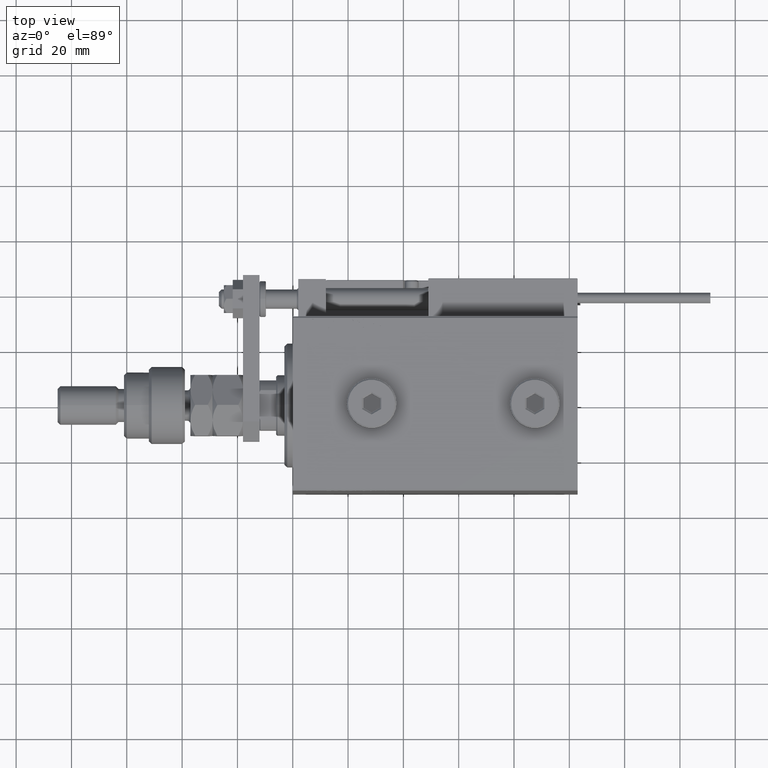
[diagram: clean part render]
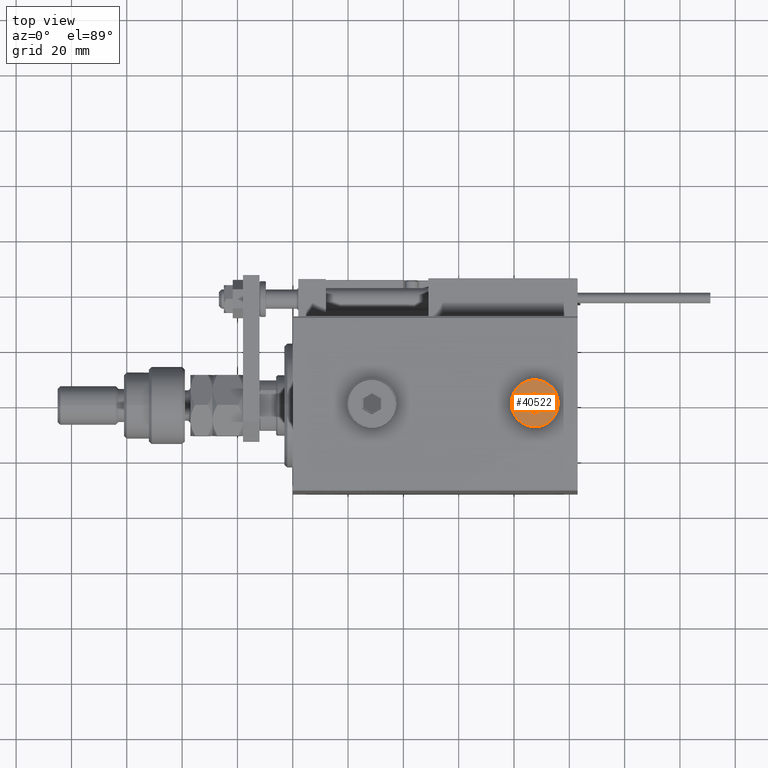
[diagram: same view with one face highlighted and labeled with its STEP entity id]
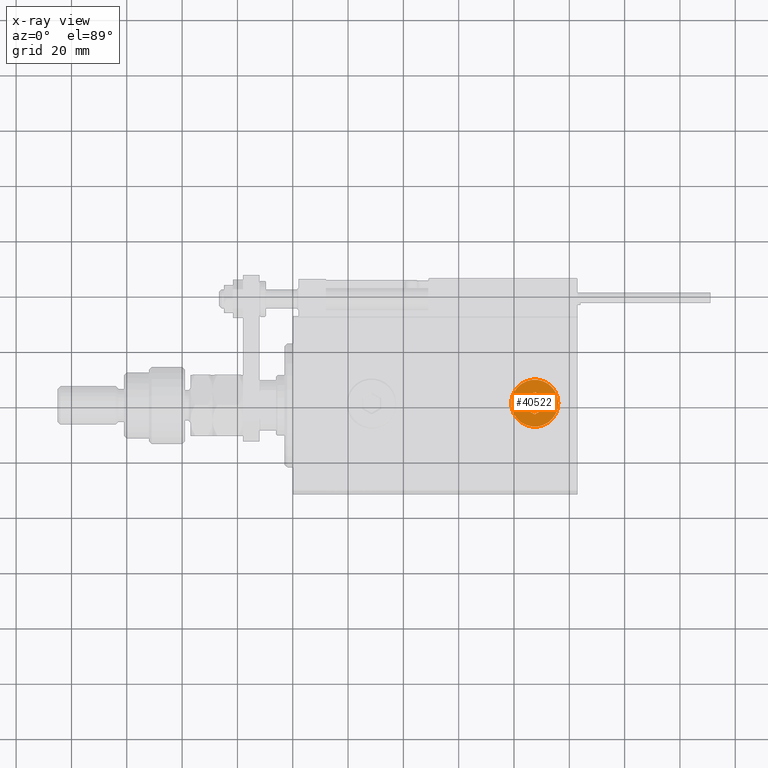
[diagram: x-ray of the same camera — body ghosted, the highlighted face saturated]
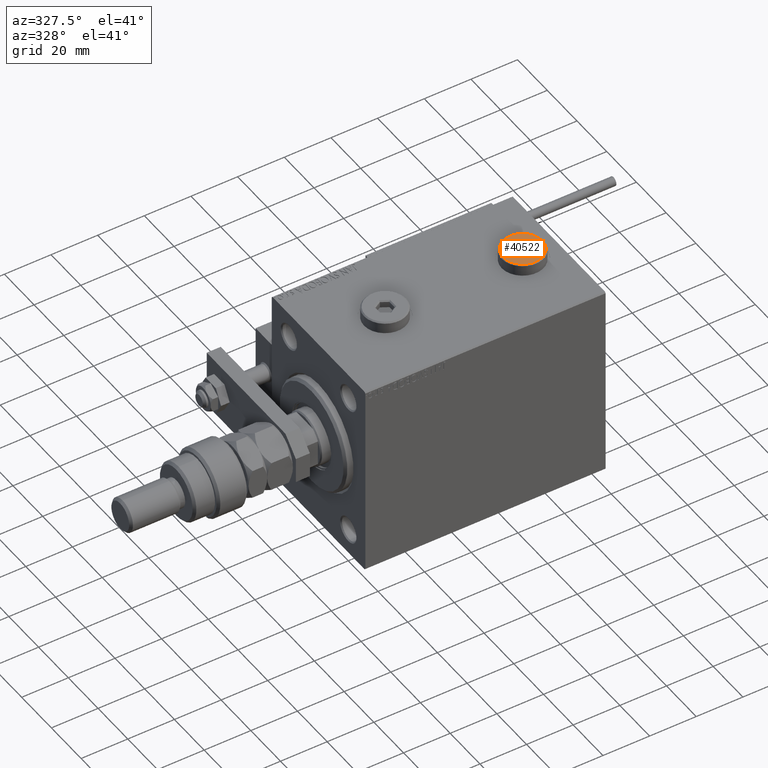
[diagram: same view with one face highlighted and labeled with its STEP entity id]
A machine part, top view. The second image highlights one B-rep face of the part: STEP entity #40522.
The next image is the same camera in x-ray: the body ghosted, the highlighted face saturated — about 0% of this face is hidden behind the body in this view.
A second angle (auxiliary view) of the same face is appended — the face is thin or edge-on in the first view.
In plain terms, the highlighted planar face has unit normal (0, 0, 1).
Its self-contained STEP definition (entity closure, byte-faithful):
#294 = EDGE_CURVE ( 'NONE', #5337, #26127, #39803, .T. ) ;
#570 = ORIENTED_EDGE ( 'NONE', *, *, #7178, .T. ) ;
#1212 = DIRECTION ( 'NONE',  ( 1.000000000000000000, 0.000000000000000000, 0.000000000000000000 ) ) ;
#1324 = VECTOR ( 'NONE', #45115, 1000.000000000000000 ) ;
#2030 = ORIENTED_EDGE ( 'NONE', *, *, #14037, .T. ) ;
#2640 = DIRECTION ( 'NONE',  ( -0.8660254037844387076, -0.4999999999999998890, 0.000000000000000000 ) ) ;
#2750 = CARTESIAN_POINT ( 'NONE',  ( 3.500000000000006661, 2.020725942163694722, 5.000000000000000000 ) ) ;
#3882 = DIRECTION ( 'NONE',  ( 0.000000000000000000, 1.000000000000000000, 0.000000000000000000 ) ) ;
#5004 = CARTESIAN_POINT ( 'NONE',  ( -3.500000000000006661, 2.020725942163692945, 5.000000000000000000 ) ) ;
#5337 = VERTEX_POINT ( 'NONE', #24980 ) ;
#5685 = LINE ( 'NONE', #33035, #51308 ) ;
#5704 = VECTOR ( 'NONE', #39187, 1000.000000000000000 ) ;
#6153 = VERTEX_POINT ( 'NONE', #2750 ) ;
#7008 = DIRECTION ( 'NONE',  ( 0.000000000000000000, 0.000000000000000000, 1.000000000000000000 ) ) ;
#7178 = EDGE_CURVE ( 'NONE', #17049, #48387, #47528, .T. ) ;
#8092 = EDGE_LOOP ( 'NONE', ( #51023, #26007 ) ) ;
#10954 = CARTESIAN_POINT ( 'NONE',  ( -0.2500000000000027756, 3.897114317029978459, 5.000000000000000000 ) ) ;
#12762 = CIRCLE ( 'NONE', #20042, 8.500000000000010658 ) ;
#14037 = EDGE_CURVE ( 'NONE', #25117, #17049, #32326, .T. ) ;
#16393 = ORIENTED_EDGE ( 'NONE', *, *, #44211, .T. ) ;
#16759 = LINE ( 'NONE', #42232, #43916 ) ;
#17049 = VERTEX_POINT ( 'NONE', #51992 ) ;
#19320 = FACE_BOUND ( 'NONE', #22100, .T. ) ;
#19696 = VERTEX_POINT ( 'NONE', #5004 ) ;
#20042 = AXIS2_PLACEMENT_3D ( 'NONE', #26361, #26077, #43165 ) ;
#20143 = CARTESIAN_POINT ( 'NONE',  ( 0.000000000000000000, 0.000000000000000000, 5.000000000000000000 ) ) ;
#21483 = DIRECTION ( 'NONE',  ( -0.8660254037844385966, 0.4999999999999999445, 0.000000000000000000 ) ) ;
#22100 = EDGE_LOOP ( 'NONE', ( #32527, #23138, #43793, #16393, #2030, #570 ) ) ;
#22409 = FACE_OUTER_BOUND ( 'NONE', #8092, .T. ) ;
#22649 = AXIS2_PLACEMENT_3D ( 'NONE', #20143, #7008, #41974 ) ;
#23138 = ORIENTED_EDGE ( 'NONE', *, *, #31794, .T. ) ;
#24980 = CARTESIAN_POINT ( 'NONE',  ( 8.500000000000010658, 1.071565949253934716E-15, 5.000000000000000000 ) ) ;
#25117 = VERTEX_POINT ( 'NONE', #47701 ) ;
#25302 = EDGE_CURVE ( 'NONE', #50757, #6153, #5685, .T. ) ;
#26007 = ORIENTED_EDGE ( 'NONE', *, *, #294, .T. ) ;
#26077 = DIRECTION ( 'NONE',  ( 0.000000000000000000, 0.000000000000000000, 1.000000000000000000 ) ) ;
#26127 = VERTEX_POINT ( 'NONE', #54121 ) ;
#26167 = EDGE_CURVE ( 'NONE', #26127, #5337, #12762, .T. ) ;
#26361 = CARTESIAN_POINT ( 'NONE',  ( 0.000000000000000000, 0.000000000000000000, 5.000000000000000000 ) ) ;
#27236 = CARTESIAN_POINT ( 'NONE',  ( 0.000000000000000000, 0.000000000000000000, 5.000000000000000000 ) ) ;
#27562 = CARTESIAN_POINT ( 'NONE',  ( 0.2500000000000027756, -3.897114317029979347, 5.000000000000000000 ) ) ;
#31794 = EDGE_CURVE ( 'NONE', #19696, #50757, #49866, .T. ) ;
#32326 = LINE ( 'NONE', #27562, #38314 ) ;
#32527 = ORIENTED_EDGE ( 'NONE', *, *, #35194, .T. ) ;
#33035 = CARTESIAN_POINT ( 'NONE',  ( 3.250000000000003109, 2.165063509461103042, 5.000000000000000000 ) ) ;
#34579 = CARTESIAN_POINT ( 'NONE',  ( -3.500000000000006661, -2.020725942163694278, 5.000000000000000000 ) ) ;
#34730 = LINE ( 'NONE', #38920, #5704 ) ;
#35194 = EDGE_CURVE ( 'NONE', #48387, #19696, #16759, .T. ) ;
#35365 = DIRECTION ( 'NONE',  ( 0.8660254037844387076, -0.4999999999999998890, 0.000000000000000000 ) ) ;
#38314 = VECTOR ( 'NONE', #2640, 1000.000000000000000 ) ;
#38920 = CARTESIAN_POINT ( 'NONE',  ( 3.500000000000006661, -1.732050807568878303, 5.000000000000000000 ) ) ;
#39187 = DIRECTION ( 'NONE',  ( 0.000000000000000000, -1.000000000000000000, 0.000000000000000000 ) ) ;
#39491 = PLANE ( 'NONE',  #22649 ) ;
#39803 = CIRCLE ( 'NONE', #49655, 8.500000000000010658 ) ;
#40522 = ADVANCED_FACE ( 'NONE', ( #19320, #22409 ), #39491, .T. ) ;
#41974 = DIRECTION ( 'NONE',  ( 1.000000000000000000, 0.000000000000000000, -0.000000000000000000 ) ) ;
#42232 = CARTESIAN_POINT ( 'NONE',  ( -3.500000000000006661, 1.732050807568878081, 5.000000000000000000 ) ) ;
#43165 = DIRECTION ( 'NONE',  ( 1.000000000000000000, 0.000000000000000000, 0.000000000000000000 ) ) ;
#43793 = ORIENTED_EDGE ( 'NONE', *, *, #25302, .T. ) ;
#43916 = VECTOR ( 'NONE', #3882, 1000.000000000000000 ) ;
#44211 = EDGE_CURVE ( 'NONE', #6153, #25117, #34730, .T. ) ;
#45115 = DIRECTION ( 'NONE',  ( 0.8660254037844387076, 0.4999999999999998335, 0.000000000000000000 ) ) ;
#46410 = CARTESIAN_POINT ( 'NONE',  ( 1.590596867181068292E-15, 4.041451884327386779, 5.000000000000000000 ) ) ;
#47256 = CARTESIAN_POINT ( 'NONE',  ( -3.250000000000003109, -2.165063509461102598, 5.000000000000000000 ) ) ;
#47528 = LINE ( 'NONE', #47256, #48884 ) ;
#47701 = CARTESIAN_POINT ( 'NONE',  ( 3.500000000000006661, -2.020725942163693833, 5.000000000000000000 ) ) ;
#48387 = VERTEX_POINT ( 'NONE', #34579 ) ;
#48884 = VECTOR ( 'NONE', #21483, 1000.000000000000114 ) ;
#49655 = AXIS2_PLACEMENT_3D ( 'NONE', #27236, #52444, #1212 ) ;
#49866 = LINE ( 'NONE', #10954, #1324 ) ;
#50757 = VERTEX_POINT ( 'NONE', #46410 ) ;
#51023 = ORIENTED_EDGE ( 'NONE', *, *, #26167, .T. ) ;
#51308 = VECTOR ( 'NONE', #35365, 1000.000000000000000 ) ;
#51992 = CARTESIAN_POINT ( 'NONE',  ( -1.006139216460143630E-15, -4.041451884327387667, 5.000000000000000000 ) ) ;
#52444 = DIRECTION ( 'NONE',  ( 0.000000000000000000, 0.000000000000000000, 1.000000000000000000 ) ) ;
#54121 = CARTESIAN_POINT ( 'NONE',  ( -8.500000000000010658, 0.000000000000000000, 5.000000000000000000 ) ) ;